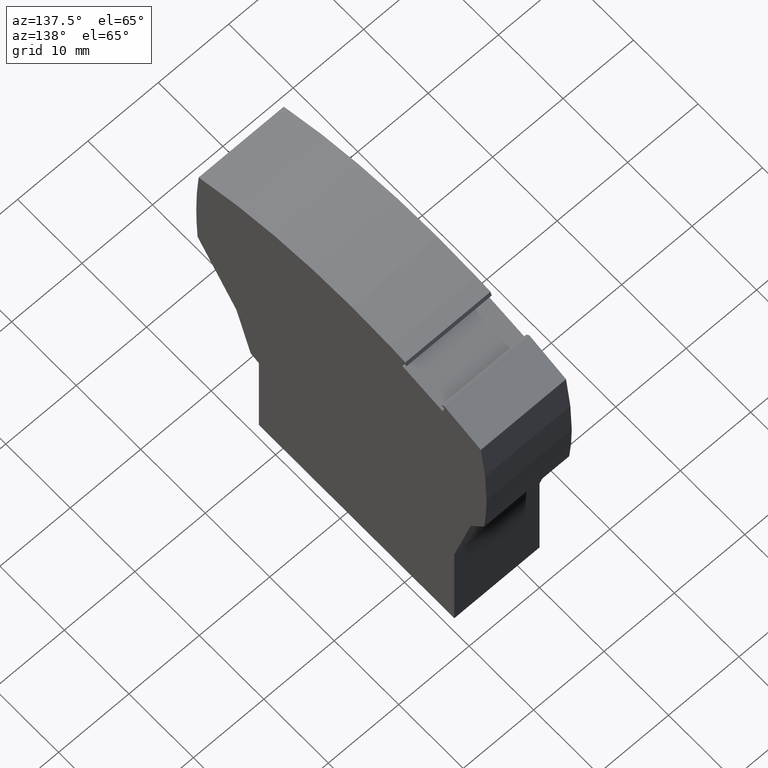
[diagram: clean part render]
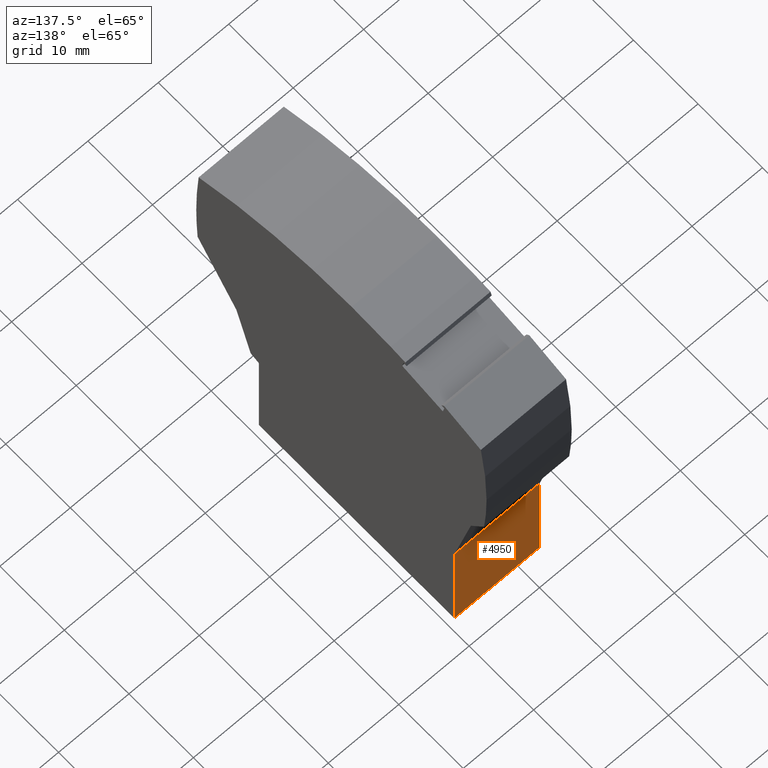
[diagram: same view with one face highlighted and labeled with its STEP entity id]
A machine part, auxiliary view. The second image highlights one B-rep face of the part: STEP entity #4950.
In plain terms, the highlighted planar face has unit normal (0, 1, 0).
Its self-contained STEP definition (entity closure, byte-faithful):
#1960=CARTESIAN_POINT('',(-15.7178327738811,-10.3999999999857,
53.5700000001206));
#1970=VERTEX_POINT('',#1960);
#2000=CARTESIAN_POINT('',(-15.7178327738753,-5.17654999421573,
53.5700000001206));
#2010=DIRECTION('',(1.11123366772477E-12,1.,0.));
#2020=VECTOR('',#2010,1.);
#2030=LINE('',#2000,#2020);
#2040=CARTESIAN_POINT('',(-15.7178327738635,5.43640232414893,
53.5700000001206));
#2050=VERTEX_POINT('',#2040);
#2060=EDGE_CURVE('',#1970,#2050,#2030,.T.);
#4100=CARTESIAN_POINT('',(-15.7178327738651,5.4364023240739,
41.4450000001206));
#4110=DIRECTION('',(0.,0.,1.));
#4120=VECTOR('',#4110,1.);
#4130=LINE('',#4100,#4120);
#4140=CARTESIAN_POINT('',(-15.7178327738635,5.43640232414893,
41.4700000001206));
#4150=VERTEX_POINT('',#4140);
#4160=EDGE_CURVE('',#4150,#2050,#4130,.T.);
#4720=CARTESIAN_POINT('',(-15.7178327738779,-7.52345000575573,
41.4450000001206));
#4730=DIRECTION('',(-1.,1.11123366772477E-12,0.));
#4740=DIRECTION('',(-1.11123366772477E-12,-1.,0.));
#4750=AXIS2_PLACEMENT_3D('',#4720,#4730,#4740);
#4760=PLANE('',#4750);
#4770=ORIENTED_EDGE('',*,*,#4160,.F.);
#4780=ORIENTED_EDGE('',*,*,#2060,.T.);
#4790=CARTESIAN_POINT('',(-15.7178327738811,-10.3999999999857,
41.4450000001206));
#4800=DIRECTION('',(0.,0.,1.));
#4810=VECTOR('',#4800,1.);
#4820=LINE('',#4790,#4810);
#4830=CARTESIAN_POINT('',(-15.7178327738811,-10.3999999999857,
41.4700000001206));
#4840=VERTEX_POINT('',#4830);
#4850=EDGE_CURVE('',#4840,#1970,#4820,.T.);
#4860=ORIENTED_EDGE('',*,*,#4850,.T.);
#4870=CARTESIAN_POINT('',(-15.7178327738753,-5.17654999421573,
41.4700000001206));
#4880=DIRECTION('',(1.11123366772477E-12,1.,0.));
#4890=VECTOR('',#4880,1.);
#4900=LINE('',#4870,#4890);
#4910=EDGE_CURVE('',#4840,#4150,#4900,.T.);
#4920=ORIENTED_EDGE('',*,*,#4910,.F.);
#4930=EDGE_LOOP('',(#4920,#4860,#4780,#4770));
#4940=FACE_OUTER_BOUND('',#4930,.T.);
#4950=ADVANCED_FACE('',(#4940),#4760,.T.);